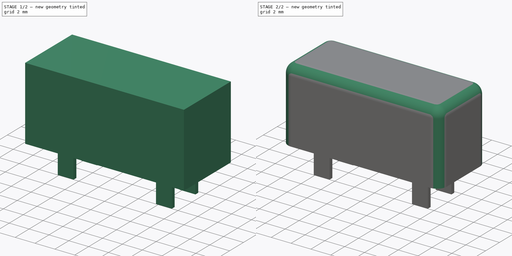
[diagram: build sequence overview — one tinted view per stage of 2, left to right]
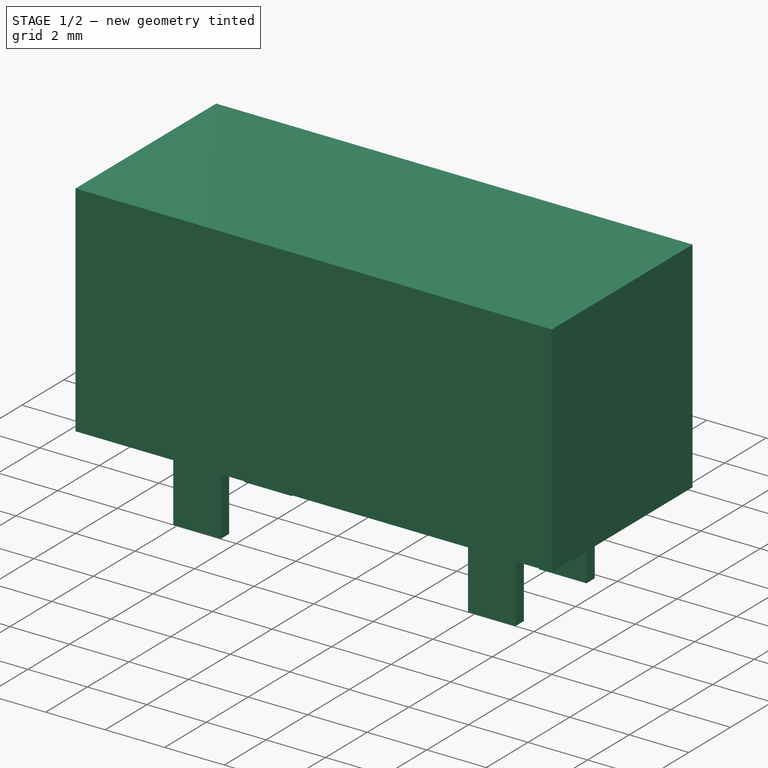
[diagram: stage 1 of 2 — iso view after this stage's code; geometry added in this stage tinted green]
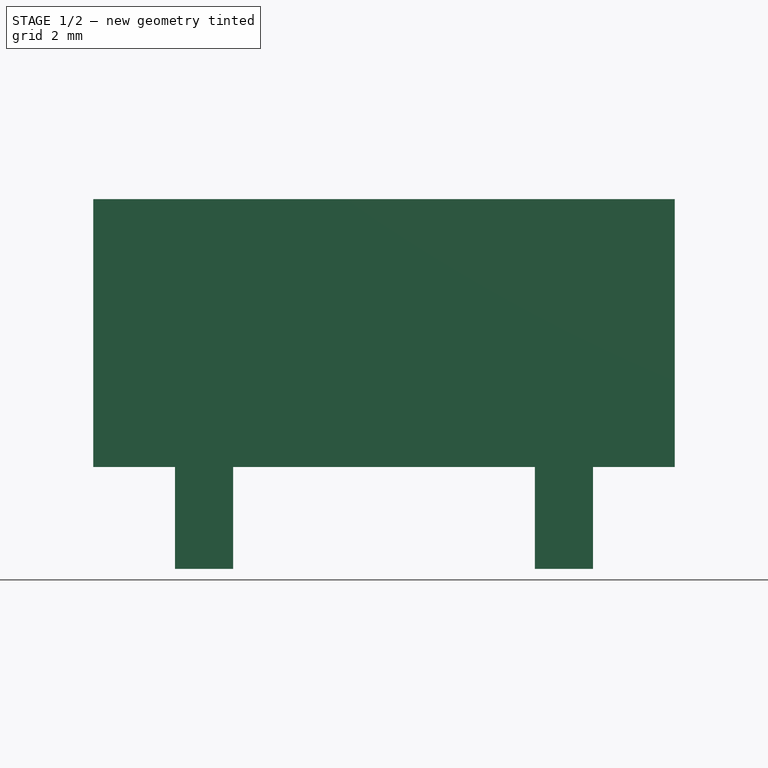
[diagram: stage 1 of 2 — front view after this stage's code; geometry added in this stage tinted green]
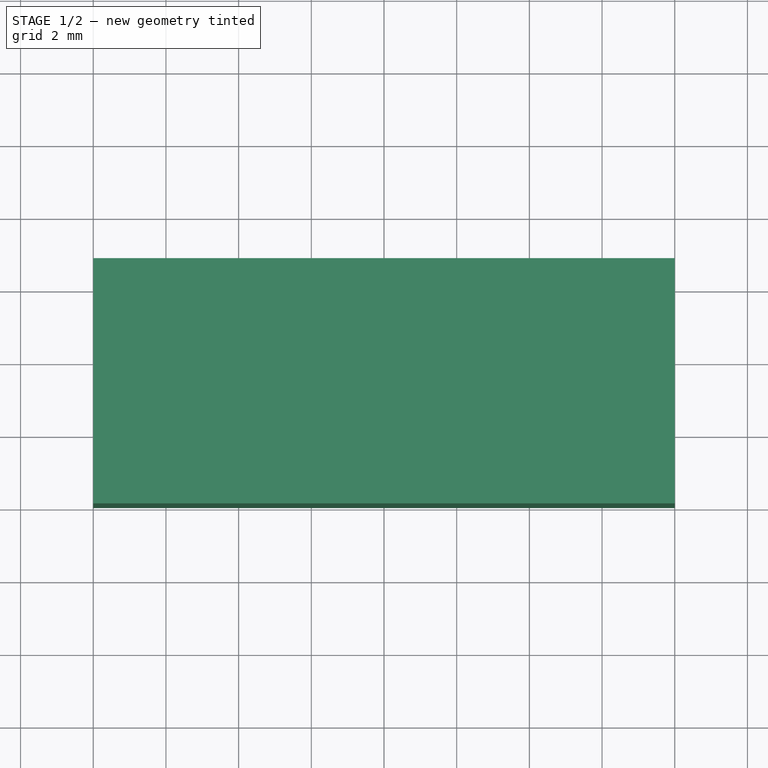
[diagram: stage 1 of 2 — top view after this stage's code; geometry added in this stage tinted green]
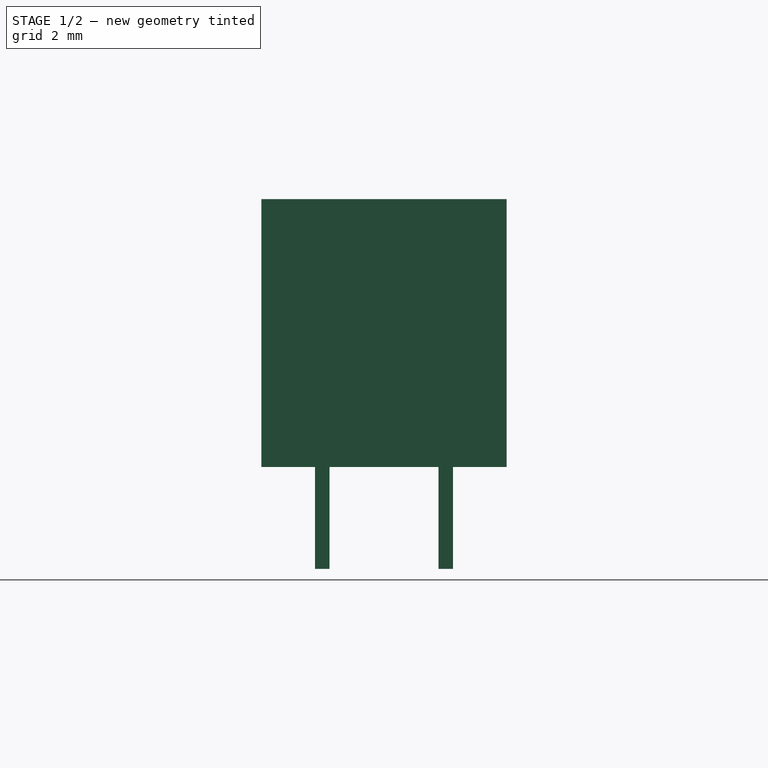
[diagram: stage 1 of 2 — right view after this stage's code; geometry added in this stage tinted green]
FCSTD DOCUMENT  (FreeCAD 0.19R24291 (Git))
Label: Fuse_Holder_3568
License: All rights reserved
LicenseURL: http://en.wikipedia.org/wiki/All_rights_reserved
objects: Sketcher::SketchObject×2, PartDesign::Pad×2, PartDesign::Fillet×1, PartDesign::Body×1
note: 9 computed .brp shape members not serialized (recipe doc carries the construction recipe); baked Part::Feature solids carry a one-line shape summary decoded from their .brp

FEATURE [Sketcher::SketchObject] Sketch
  FullyConstrained = true
  MapMode = 5
  Support = -> [XY_Plane]
  sketch-geometry (4):
    g0: LineSegment StartX=0 StartY=0 StartZ=0 EndX=16 EndY=0 EndZ=0
    g1: LineSegment StartX=16 StartY=0 StartZ=0 EndX=16 EndY=6.75 EndZ=0
    g2: LineSegment StartX=16 StartY=6.75 StartZ=0 EndX=0 EndY=6.75 EndZ=0
    g3: LineSegment StartX=0 StartY=6.75 StartZ=0 EndX=0 EndY=0 EndZ=0
  constraints (11):
    c: Coincident(g0,g1)
    c: Coincident(g1,g2)
    c: Coincident(g2,g3)
    c: Coincident(g3,g0)
    c: Horizontal(g0)
    c: Horizontal(g2)
    c: Vertical(g1)
    c: Vertical(g3)
    c: Coincident(g0,g-1)
    c: DistanceX(g2,g2) = 16
    c: DistanceY(g3,g3) = 6.75
FEATURE [PartDesign::Pad] Pad
  Direction = (1,1,1)
  Length = 7.37
  Length2 = 100
  Profile = -> Sketch
  Type = 0
FEATURE [Sketcher::SketchObject] Sketch001
  FullyConstrained = true
  MapMode = 5
  Support = -> [XY_Plane]
  sketch-geometry (20):
    g0: LineSegment StartX=3.05 StartY=1.675 StartZ=0 EndX=12.95 EndY=1.675 EndZ=0
    g1: LineSegment StartX=12.95 StartY=1.675 StartZ=0 EndX=12.95 EndY=5.075 EndZ=0
    g2: LineSegment StartX=12.95 StartY=5.075 StartZ=0 EndX=3.05 EndY=5.075 EndZ=0
    g3: LineSegment StartX=3.05 StartY=5.075 StartZ=0 EndX=3.05 EndY=1.675 EndZ=0
    g4: LineSegment StartX=2.25 StartY=5.275 StartZ=0 EndX=3.85 EndY=5.275 EndZ=0
    g5: LineSegment StartX=3.85 StartY=5.275 StartZ=0 EndX=3.85 EndY=4.875 EndZ=0
    g6: LineSegment StartX=3.85 StartY=4.875 StartZ=0 EndX=2.25 EndY=4.875 EndZ=0
    g7: LineSegment StartX=2.25 StartY=4.875 StartZ=0 EndX=2.25 EndY=5.275 EndZ=0
    g8: LineSegment StartX=12.15 StartY=5.275 StartZ=0 EndX=13.75 EndY=5.275 EndZ=0
    g9: LineSegment StartX=13.75 StartY=5.275 StartZ=0 EndX=13.75 EndY=4.875 EndZ=0
    g10: LineSegment StartX=13.75 StartY=4.875 StartZ=0 EndX=12.15 EndY=4.875 EndZ=0
    g11: LineSegment StartX=12.15 StartY=4.875 StartZ=0 EndX=12.15 EndY=5.275 EndZ=0
    g12: LineSegment StartX=12.15 StartY=1.875 StartZ=0 EndX=13.75 EndY=1.875 EndZ=0
    g13: LineSegment StartX=13.75 StartY=1.875 StartZ=0 EndX=13.75 EndY=1.475 EndZ=0
    g14: LineSegment StartX=13.75 StartY=1.475 StartZ=0 EndX=12.15 EndY=1.475 EndZ=0
    g15: LineSegment StartX=12.15 StartY=1.475 StartZ=0 EndX=12.15 EndY=1.875 EndZ=0
    g16: LineSegment StartX=2.25 StartY=1.875 StartZ=0 EndX=3.85 EndY=1.875 EndZ=0
    g17: LineSegment StartX=3.85 StartY=1.875 StartZ=0 EndX=3.85 EndY=1.475 EndZ=0
    g18: LineSegment StartX=3.85 StartY=1.475 StartZ=0 EndX=2.25 EndY=1.475 EndZ=0
    g19: LineSegment StartX=2.25 StartY=1.475 StartZ=0 EndX=2.25 EndY=1.875 EndZ=0
  constraints (60):
    c: Coincident(g0,g1)
    c: Coincident(g1,g2)
    c: Coincident(g2,g3)
    c: Coincident(g3,g0)
    c: Horizontal(g0)
    c: Horizontal(g2)
    c: Vertical(g1)
    c: Vertical(g3)
    c: DistanceX(g2,g2) = 9.9
    c: DistanceY(g3,g3) = 3.4
    c: DistanceY(g-1,g0) = 1.675
    c: DistanceX(g-1,g0) = 3.05
    c: Coincident(g4,g5)
    c: Coincident(g5,g6)
    c: Coincident(g6,g7)
    c: Coincident(g7,g4)
    c: Horizontal(g4)
    c: Horizontal(g6)
    c: Vertical(g5)
    c: Vertical(g7)
    c: DistanceX(g4,g4) = 1.6
    c: DistanceY(g7,g7) = 0.4
    c: DistanceX(g4,g2) = 0.8
    c: DistanceY(g6,g2) = 0.2
    c: Coincident(g8,g9)
    c: Coincident(g9,g10)
    c: Coincident(g10,g11)
    c: Coincident(g11,g8)
    c: Horizontal(g8)
    c: Horizontal(g10)
    c: Vertical(g9)
    c: Vertical(g11)
    c: Coincident(g12,g13)
    c: Coincident(g13,g14)
    c: Coincident(g14,g15)
    c: Coincident(g15,g12)
    c: Horizontal(g12)
    c: Horizontal(g14)
    c: Vertical(g13)
    c: Vertical(g15)
    c: Coincident(g16,g17)
    c: Coincident(g17,g18)
    c: Coincident(g18,g19)
    c: Coincident(g19,g16)
    c: Horizontal(g16)
    c: Horizontal(g18)
    c: Vertical(g17)
    c: Vertical(g19)
    c: DistanceX(g16,g16) = 1.6
    c: DistanceX(g12,g12) = 1.6
    c: DistanceX(g8,g8) = 1.6
    c: DistanceY(g17,g17) = 0.4
    c: DistanceY(g13,g13) = 0.4
    c: DistanceY(g9,g9) = 0.4
    c: DistanceY(g1,g8) = 0.2
    c: DistanceY(g0,g12) = 0.2
    c: DistanceY(g18,g0) = 0.2
    c: DistanceX(g16,g0) = 0.8
    c: DistanceX(g12,g0) = 0.8
    c: DistanceX(g8,g1) = 0.8
FEATURE [PartDesign::Pad] Pad001
  BaseFeature = -> Pad
  Direction = (1,1,1)
  Length = 2.8
  Length2 = 100
  Profile = -> Sketch001
  Reversed = true
  Type = 0
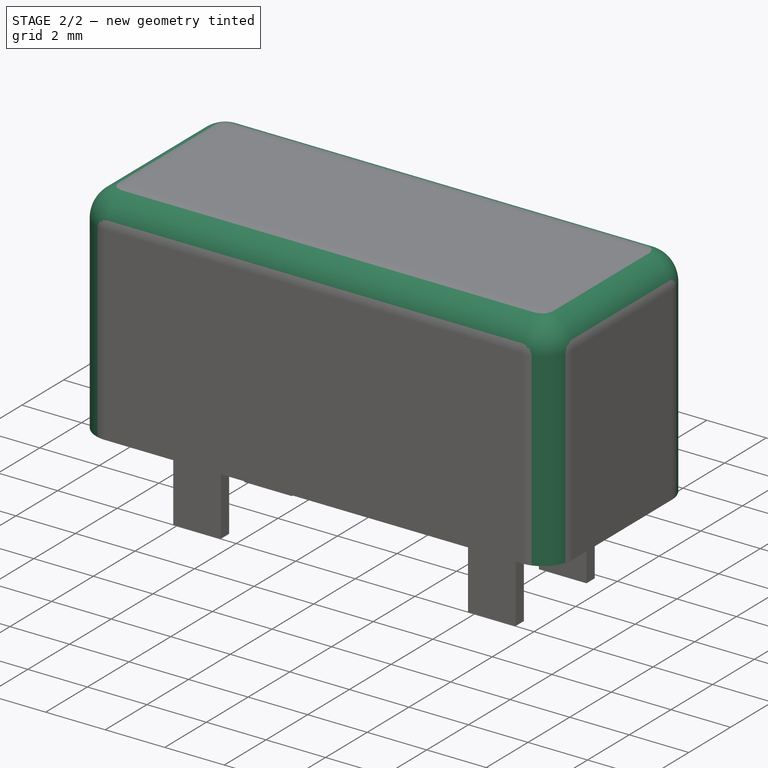
[diagram: stage 2 of 2 — iso view after this stage's code; geometry added in this stage tinted green]
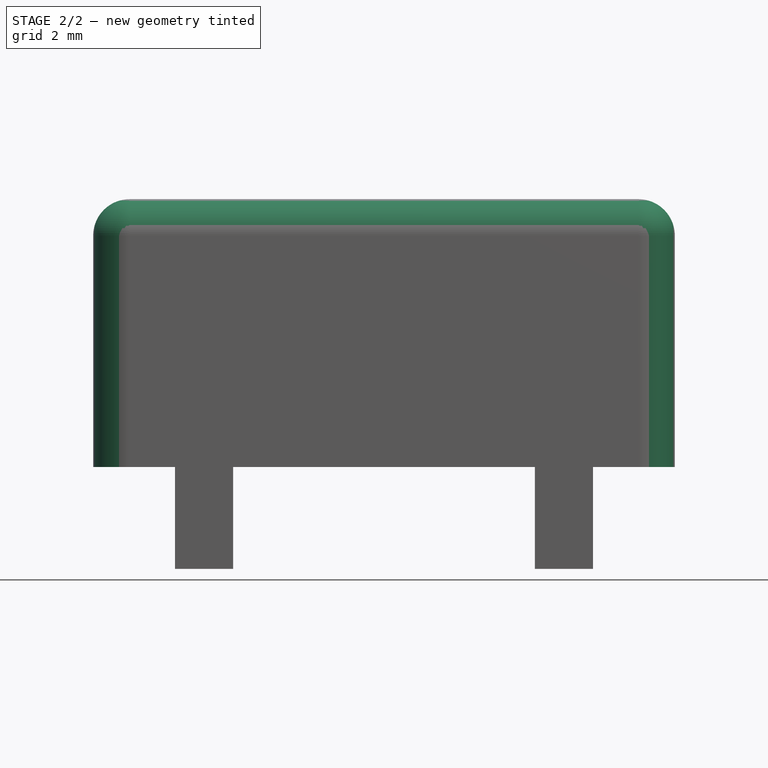
[diagram: stage 2 of 2 — front view after this stage's code; geometry added in this stage tinted green]
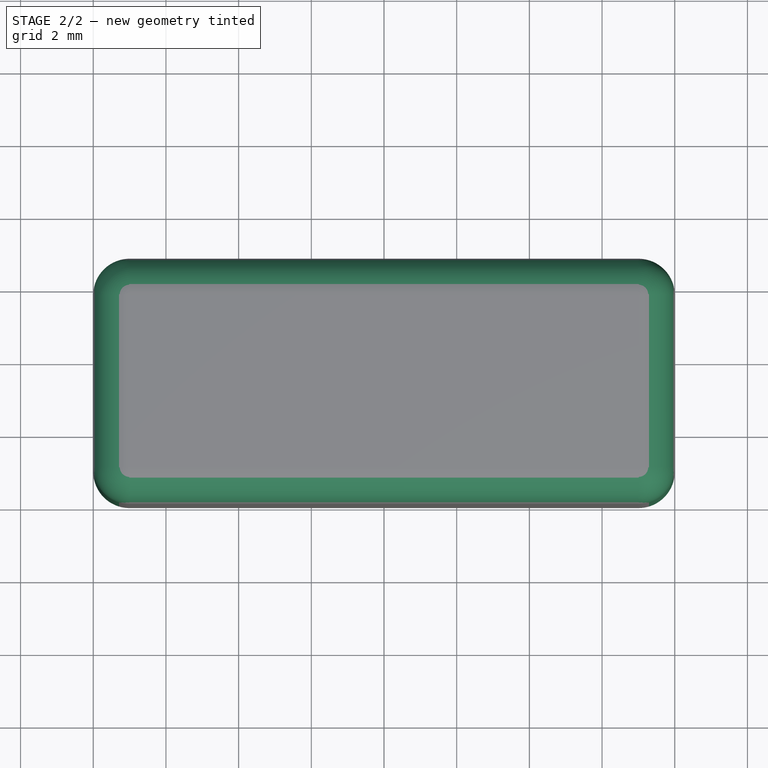
[diagram: stage 2 of 2 — top view after this stage's code; geometry added in this stage tinted green]
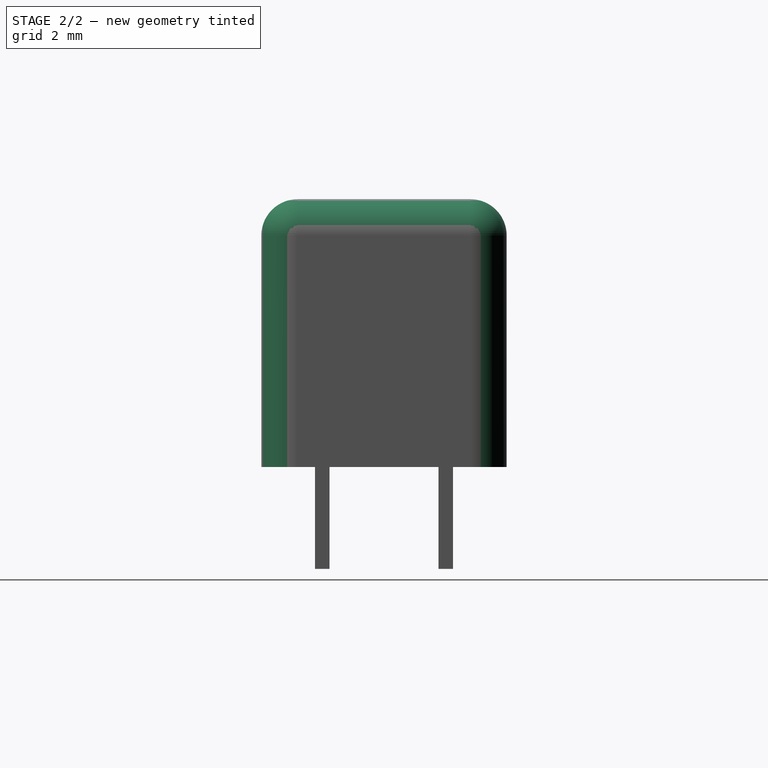
[diagram: stage 2 of 2 — right view after this stage's code; geometry added in this stage tinted green]
FEATURE [PartDesign::Fillet] Fillet
  Base = -> Pad001 [Edge1,Face5,Edge2,Edge8,Edge5]
  BaseFeature = -> Pad001
  Radius = 1
  SupportTransform = false
FEATURE [PartDesign::Body] Body
  Group = -> [Sketch,Pad,Sketch001,Pad001,Fillet]
  Origin = -> Origin
  Tip = -> Fillet
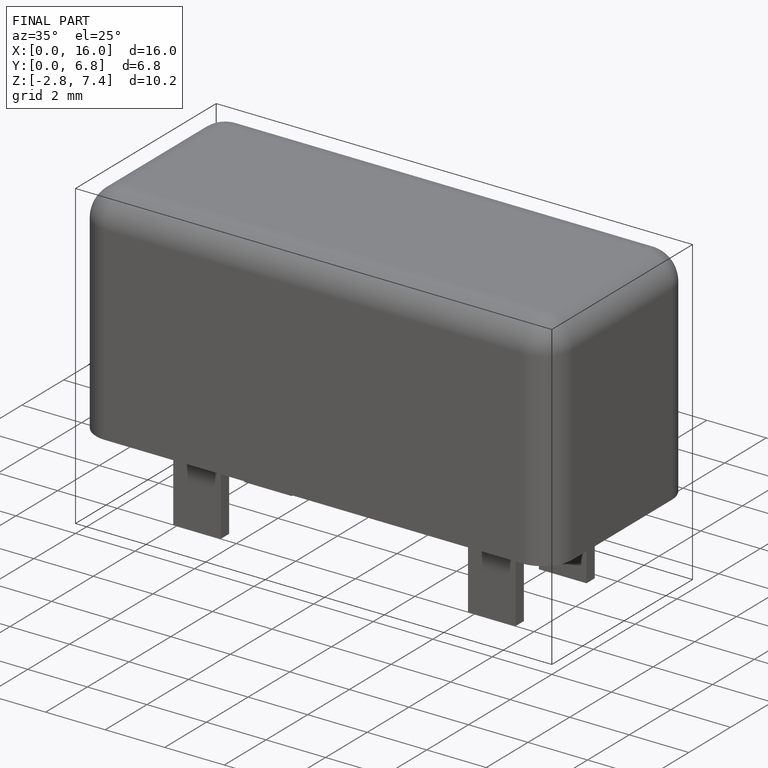
[diagram: finished part — iso view with bounding-box wireframe]
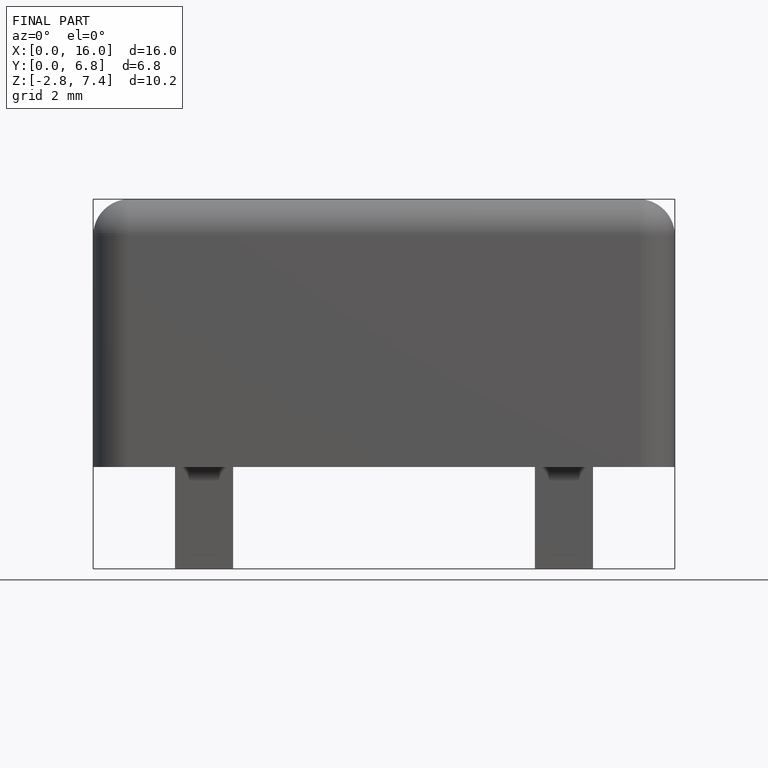
[diagram: finished part — front view with bounding-box wireframe]
